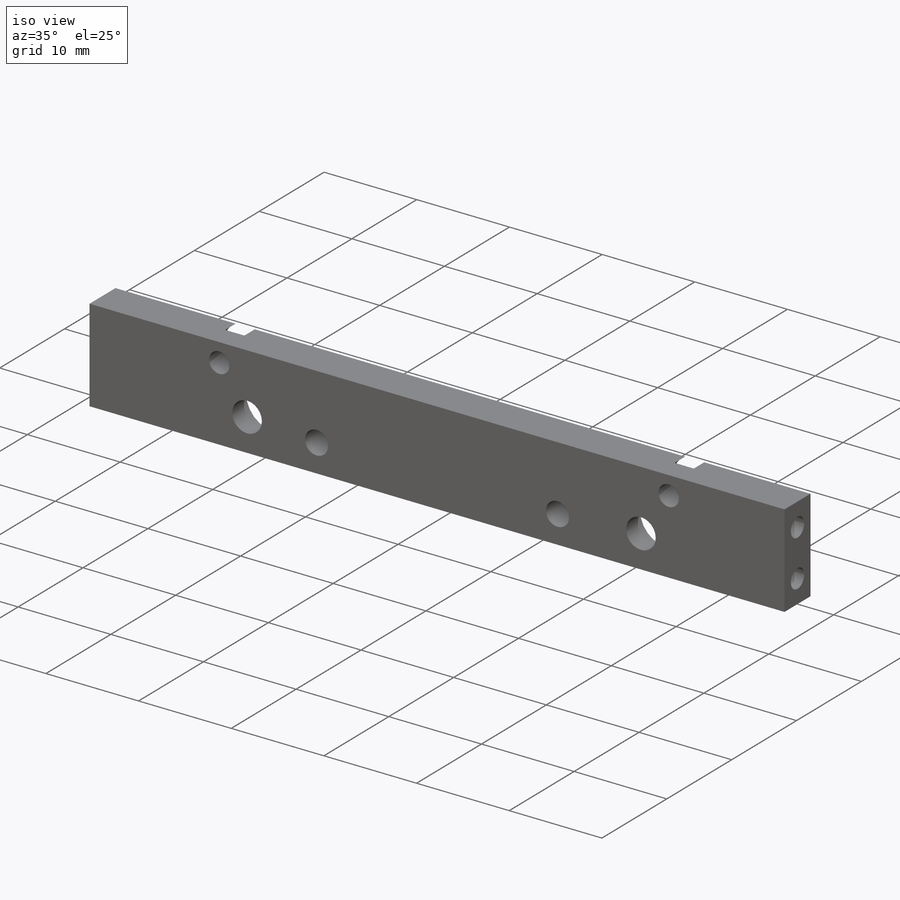
[diagram: iso view]
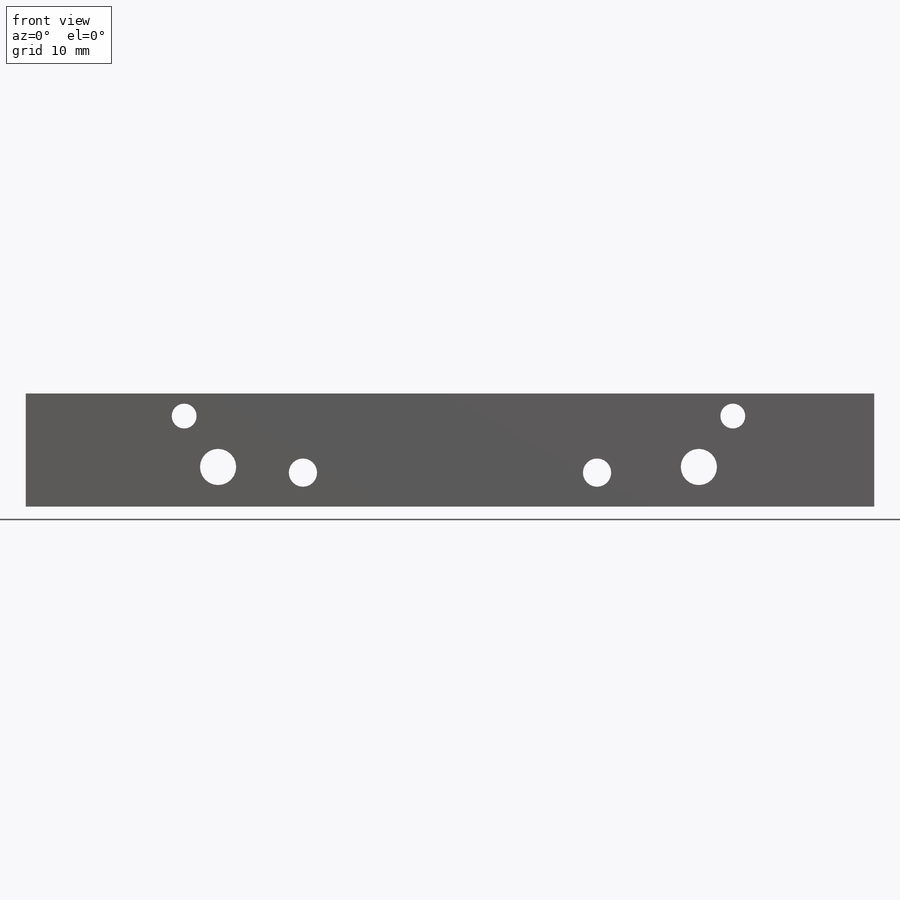
[diagram: front view]
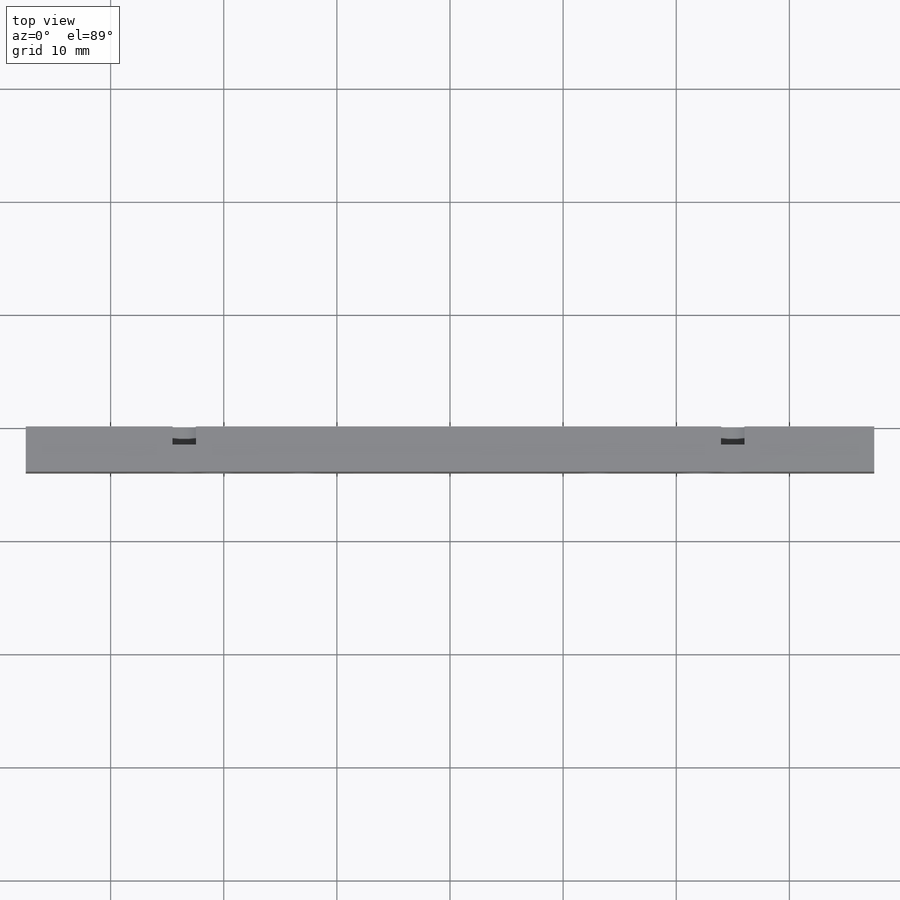
[diagram: top view]
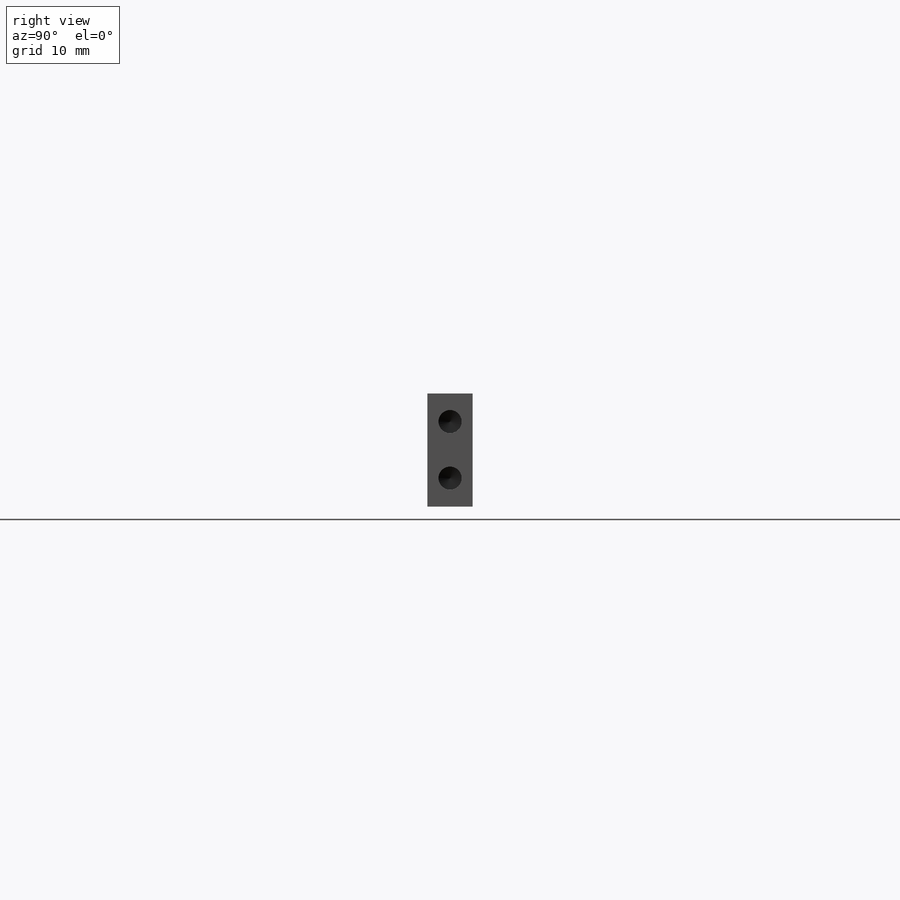
[diagram: right view]
SOLIDWORKS PART (.sldprt)
format: sldprt  version: not decoded by parser v0  size: 283,136 bytes
history: native  units: mm
features: sketch x11, hole x5, material x1, plane x1, extrude x1 (+13 scaffold rows collapsed)
feature tree (32):
  scaffold x13  (default folders/planes/origin — collapsed)
  material  "Material <not specified>"
  plane  "Plane1"  Offset=4mm
  sketch  "Sketch1"
  extrude  "Boss-Extrude1"  Depth=4mm
  hole  "Ø2.5 (2.5) Diameter Hole1"  Diameter=2.5mm Depth=4mm
  sketch  "Sketch3"
  sketch  "Sketch2"  dims[hole-wizard template sketch: 60 standard entries collapsed; hole parameters kept: c18.Thru Hole Depth=4.0mm]
  hole  "CBORE for M3 Hex Head Machine Screw1"  Diameter=3.2mm Depth=4mm
  sketch  "Sketch5"
  sketch  "Sketch4"  dims[hole-wizard template sketch: 42 standard entries collapsed; hole parameters kept: c12.Thru Hole Depth=4.0mm c12.C'Bore Dia.=5.8mm c12.C'Bore Depth=2.2mm]
  hole  "CBORE for M2 Hex Head Machine Screw1"  Diameter=2.2mm Depth=4mm
  sketch  "Sketch7"
  sketch  "Sketch6"  dims[hole-wizard template sketch: 42 standard entries collapsed; hole parameters kept: c12.Thru Hole Depth=4.0mm c12.C'Bore Dia.=4.5mm c12.C'Bore Depth=1.6mm]
  hole  "Ø2.05 (2.05) Diameter Hole1"  Diameter=2.05mm Depth=8mm
  sketch  "Sketch9"
  sketch  "Sketch8"  dims[hole-wizard template sketch: 47 standard entries collapsed; hole parameters kept: c15.Hole Depth=8.0mm c15.D3=~14.816244mm c15.Drill Angle=118.0deg]
  hole  "Ø2.05 (2.05) Diameter Hole2"  Diameter=2.05mm Depth=8mm
  sketch  "Sketch11"
  sketch  "Sketch10"  dims[hole-wizard template sketch: 47 standard entries collapsed; hole parameters kept: c15.Hole Depth=8.0mm c15.D3=~14.816244mm c15.Drill Angle=118.0deg]
decode coverage: 11 of 17 modeling features carry decoded parameters
note: ~ marks probable driven/reference dimensions
summary: Diameter pulled from absorbed wizard sketch
note: suppression state not decoded; provenance and decode notes live in map.json
